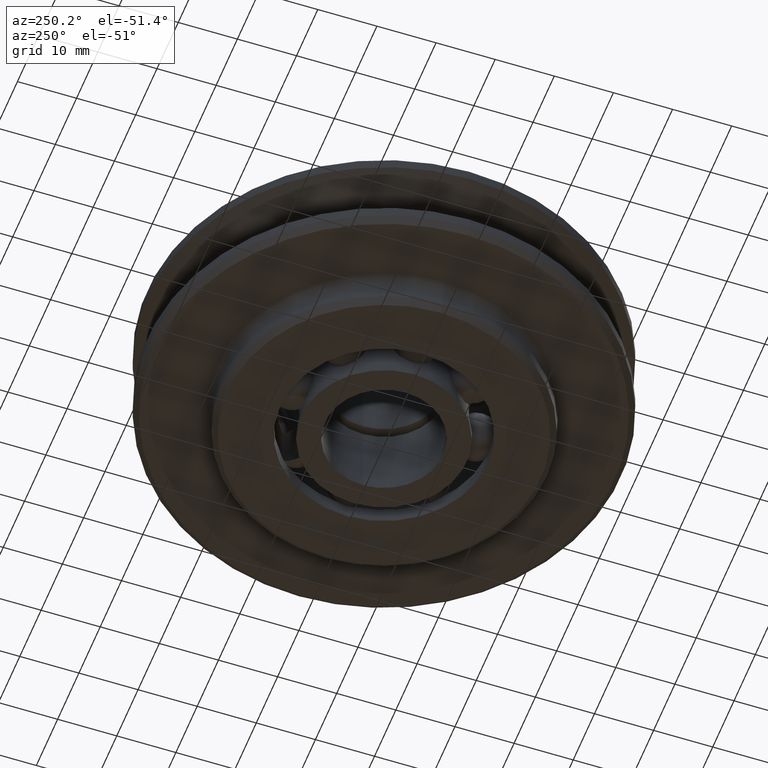
[diagram: clean part render]
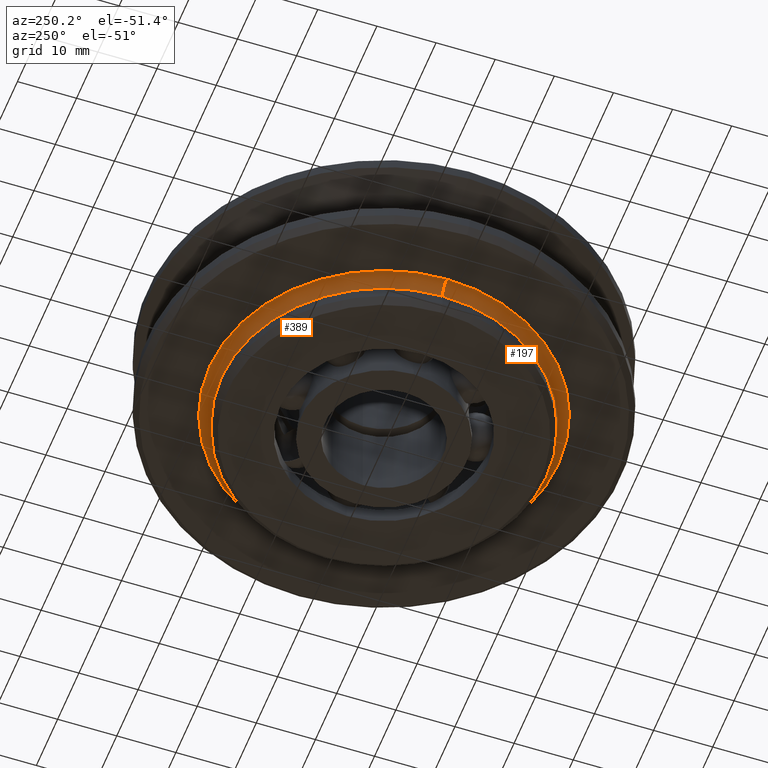
[diagram: same view with one multi-face feature highlighted, each face labeled with its STEP entity id]
A machine part, auxiliary view. The highlighted faces form ONE feature: a constant-radius fillet chain: 2 tangent blend faces with common blend radius 2 mm. The faces share edges in the B-rep.
Their STEP definitions:
[1] entity #197 (Torus):
#197=ADVANCED_FACE('',(#490),#491,.F.);
#490=FACE_OUTER_BOUND('',#900,.T.);
#491=TOROIDAL_SURFACE('',#901,29.5,2.0);
#900=EDGE_LOOP('',(#1419,#1420,#1421,#1422));
#901=AXIS2_PLACEMENT_3D('',#1423,#1424,#1425);
#1419=ORIENTED_EDGE('',*,*,#2673,.F.);
#1420=ORIENTED_EDGE('',*,*,#2674,.T.);
#1421=ORIENTED_EDGE('',*,*,#2675,.F.);
#1422=ORIENTED_EDGE('',*,*,#2676,.F.);
#1423=CARTESIAN_POINT('',(0.0,0.0,-10.0));
#1424=DIRECTION('',(0.0,0.0,1.0));
#1425=DIRECTION('',(1.0,0.0,0.0));
#2673=EDGE_CURVE('',#3290,#3291,#3292,.T.);
#2674=EDGE_CURVE('',#3290,#3293,#3294,.T.);
#2675=EDGE_CURVE('',#3295,#3293,#3296,.T.);
#2676=EDGE_CURVE('',#3291,#3295,#3297,.T.);
#3290=VERTEX_POINT('',#4947);
#3291=VERTEX_POINT('',#4948);
#3292=CIRCLE('',#4949,2.0);
#3293=VERTEX_POINT('',#4950);
#3294=CIRCLE('',#4951,27.5);
#3295=VERTEX_POINT('',#4952);
#3296=CIRCLE('',#4953,2.0);
#3297=CIRCLE('',#4954,29.5);
#4947=CARTESIAN_POINT('',(-27.5,3.36777869765522E-015,-10.0));
#4948=CARTESIAN_POINT('',(-29.5,3.61270805748469E-015,-8.0));
#4949=AXIS2_PLACEMENT_3D('',#8240,#8241,#8242);
#4950=CARTESIAN_POINT('',(27.5,0.0,-10.0));
#4951=AXIS2_PLACEMENT_3D('',#8243,#8244,#8245);
#4952=CARTESIAN_POINT('',(29.5,0.0,-8.0));
#4953=AXIS2_PLACEMENT_3D('',#8246,#8247,#8248);
#4954=AXIS2_PLACEMENT_3D('',#8249,#8250,#8251);
#8240=CARTESIAN_POINT('',(-29.5,3.61270805748469E-015,-10.0));
#8241=DIRECTION('',(-1.22464679914735E-016,-1.0,0.0));
#8242=DIRECTION('',(-1.0,1.22464679914735E-016,-0.0));
#8243=CARTESIAN_POINT('',(0.0,0.0,-10.0));
#8244=DIRECTION('',(0.0,0.0,1.0));
#8245=DIRECTION('',(1.0,0.0,0.0));
#8246=CARTESIAN_POINT('',(29.5,-3.61270805748469E-015,-10.0));
#8247=DIRECTION('',(-1.22464679914735E-016,-1.0,0.0));
#8248=DIRECTION('',(1.0,-1.22464679914735E-016,0.0));
#8249=CARTESIAN_POINT('',(0.0,0.0,-8.0));
#8250=DIRECTION('',(0.0,0.0,1.0));
#8251=DIRECTION('',(1.0,0.0,0.0));
[2] entity #389 (Torus):
#389=ADVANCED_FACE('',(#801),#802,.F.);
#801=FACE_OUTER_BOUND('',#1211,.T.);
#802=TOROIDAL_SURFACE('',#1212,29.5,2.0);
#1211=EDGE_LOOP('',(#2507,#2508,#2509,#2510));
#1212=AXIS2_PLACEMENT_3D('',#2511,#2512,#2513);
#2507=ORIENTED_EDGE('',*,*,#2673,.T.);
#2508=ORIENTED_EDGE('',*,*,#3091,.F.);
#2509=ORIENTED_EDGE('',*,*,#2675,.T.);
#2510=ORIENTED_EDGE('',*,*,#2681,.T.);
#2511=CARTESIAN_POINT('',(0.0,0.0,-10.0));
#2512=DIRECTION('',(0.0,0.0,1.0));
#2513=DIRECTION('',(1.0,0.0,0.0));
#2673=EDGE_CURVE('',#3290,#3291,#3292,.T.);
#2675=EDGE_CURVE('',#3295,#3293,#3296,.T.);
#2681=EDGE_CURVE('',#3293,#3290,#3304,.T.);
#3091=EDGE_CURVE('',#3295,#3291,#3908,.T.);
#3290=VERTEX_POINT('',#4947);
#3291=VERTEX_POINT('',#4948);
#3292=CIRCLE('',#4949,2.0);
#3293=VERTEX_POINT('',#4950);
#3295=VERTEX_POINT('',#4952);
#3296=CIRCLE('',#4953,2.0);
#3304=CIRCLE('',#4963,27.5);
#3908=CIRCLE('',#8083,29.5);
#4947=CARTESIAN_POINT('',(-27.5,3.36777869765522E-015,-10.0));
#4948=CARTESIAN_POINT('',(-29.5,3.61270805748469E-015,-8.0));
#4949=AXIS2_PLACEMENT_3D('',#8240,#8241,#8242);
#4950=CARTESIAN_POINT('',(27.5,0.0,-10.0));
#4952=CARTESIAN_POINT('',(29.5,0.0,-8.0));
#4953=AXIS2_PLACEMENT_3D('',#8246,#8247,#8248);
#4963=AXIS2_PLACEMENT_3D('',#8257,#8258,#8259);
#8083=AXIS2_PLACEMENT_3D('',#8698,#8699,#8700);
#8240=CARTESIAN_POINT('',(-29.5,3.61270805748469E-015,-10.0));
#8241=DIRECTION('',(-1.22464679914735E-016,-1.0,0.0));
#8242=DIRECTION('',(-1.0,1.22464679914735E-016,-0.0));
#8246=CARTESIAN_POINT('',(29.5,-3.61270805748469E-015,-10.0));
#8247=DIRECTION('',(-1.22464679914735E-016,-1.0,0.0));
#8248=DIRECTION('',(1.0,-1.22464679914735E-016,0.0));
#8257=CARTESIAN_POINT('',(0.0,0.0,-10.0));
#8258=DIRECTION('',(0.0,0.0,1.0));
#8259=DIRECTION('',(1.0,0.0,0.0));
#8698=CARTESIAN_POINT('',(0.0,0.0,-8.0));
#8699=DIRECTION('',(0.0,0.0,1.0));
#8700=DIRECTION('',(1.0,0.0,0.0));